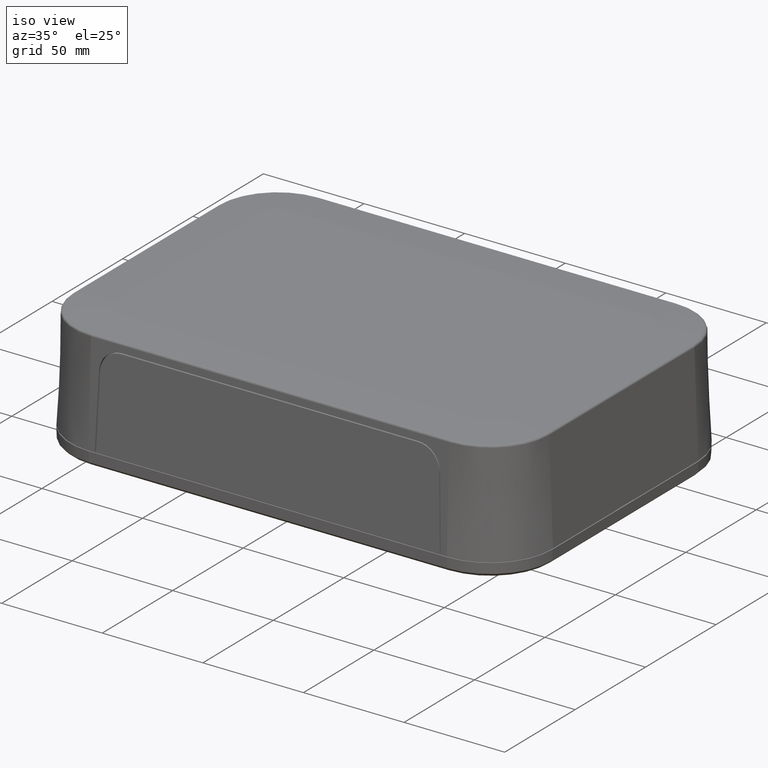
[diagram: clean part render]
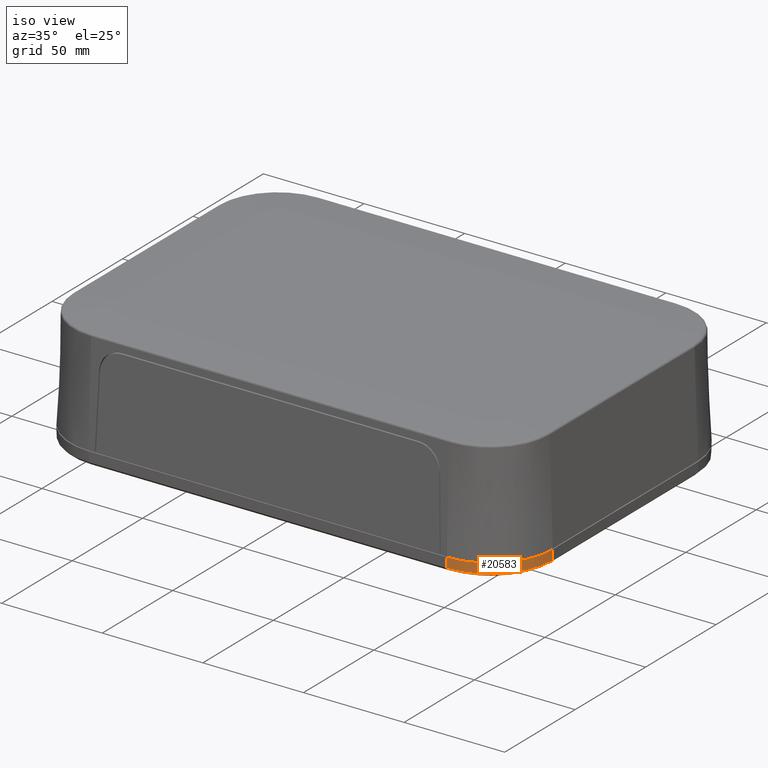
[diagram: same view with one face highlighted and labeled with its STEP entity id]
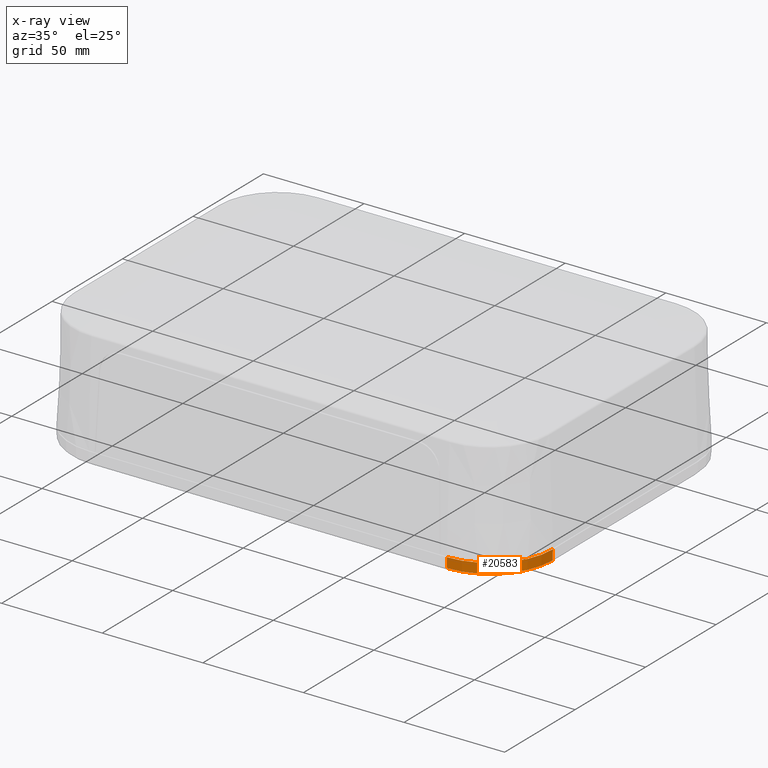
[diagram: x-ray of the same camera — body ghosted, the highlighted face saturated]
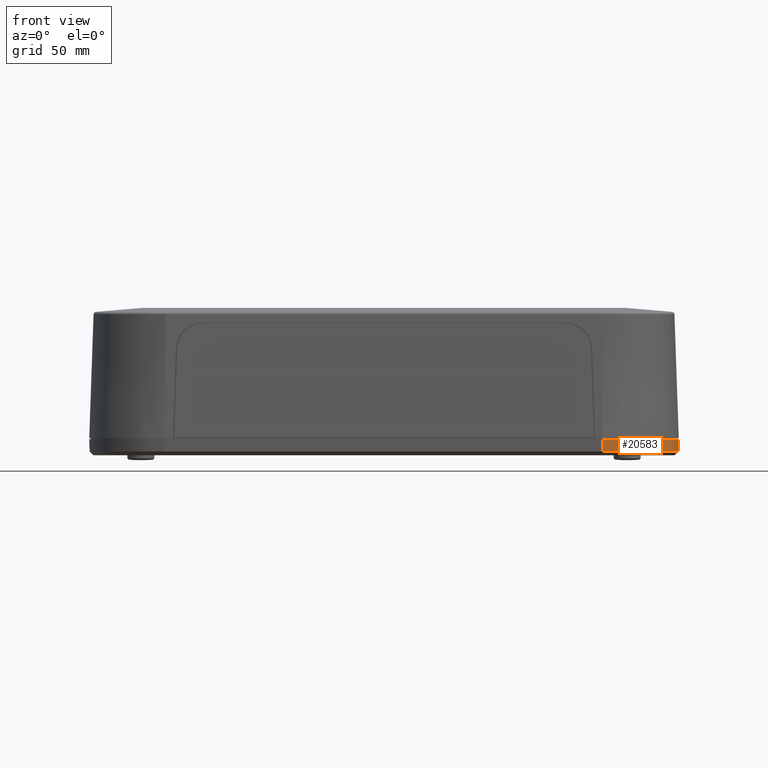
[diagram: same view with one face highlighted and labeled with its STEP entity id]
A machine part, iso view. The second image highlights one B-rep face of the part: STEP entity #20583.
The next image is the same camera in x-ray: the body ghosted, the highlighted face saturated — about 0% of this face is hidden behind the body in this view.
A second angle (front view) of the same face is appended — the face is thin or edge-on in the first view.
In plain terms, the highlighted conical surface has half-angle 2 deg.
Its self-contained STEP definition (entity closure, byte-faithful):
#1701=CARTESIAN_POINT('',(89.0,-82.5,0.0));
#1702=VERTEX_POINT('',#1701);
#1709=CARTESIAN_POINT('',(120.0,-51.499999999999986,0.0));
#1710=VERTEX_POINT('',#1709);
#1711=CARTESIAN_POINT('',(89.0,-51.499999999999986,0.0));
#1712=DIRECTION('',(0.0,0.0,-1.0));
#1713=DIRECTION('',(0.0,1.0,0.0));
#1714=AXIS2_PLACEMENT_3D('',#1711,#1712,#1713);
#1715=CIRCLE('',#1714,30.999999999999996);
#1716=EDGE_CURVE('',#1710,#1702,#1715,.T.);
#20484=CARTESIAN_POINT('',(89.0,-82.32536424335737,-5.000913759471358));
#20485=VERTEX_POINT('',#20484);
#20508=CARTESIAN_POINT('',(119.8253642433574,-51.499999999999986,-5.000913759471354));
#20509=VERTEX_POINT('',#20508);
#20516=CARTESIAN_POINT('',(89.0,-51.499999999999986,-5.000913759471354));
#20517=DIRECTION('',(0.0,0.0,-1.0));
#20518=DIRECTION('',(0.0,-1.0,0.0));
#20519=AXIS2_PLACEMENT_3D('',#20516,#20517,#20518);
#20520=CIRCLE('',#20519,30.825364243357392);
#20521=EDGE_CURVE('',#20509,#20485,#20520,.T.);
#20551=CARTESIAN_POINT('',(89.0,-82.5,0.0));
#20552=DIRECTION('',(0.0,0.034899496702502,-0.999390827019096));
#20553=VECTOR('',#20552,5.003962037942342);
#20554=LINE('',#20551,#20553);
#20555=EDGE_CURVE('',#1702,#20485,#20554,.T.);
#20567=CARTESIAN_POINT('',(89.0,-51.499999999999986,0.0));
#20568=DIRECTION('',(0.0,0.0,1.0));
#20569=DIRECTION('',(0.0,1.0,0.0));
#20570=AXIS2_PLACEMENT_3D('',#20567,#20568,#20569);
#20571=CONICAL_SURFACE('',#20570,30.999999999999996,2.0);
#20572=ORIENTED_EDGE('',*,*,#20521,.F.);
#20573=CARTESIAN_POINT('',(120.0,-51.499999999999986,0.0));
#20574=DIRECTION('',(-0.0348994967025,0.0,-0.999390827019096));
#20575=VECTOR('',#20574,5.003962037942338);
#20576=LINE('',#20573,#20575);
#20577=EDGE_CURVE('',#1710,#20509,#20576,.T.);
#20578=ORIENTED_EDGE('',*,*,#20577,.F.);
#20579=ORIENTED_EDGE('',*,*,#1716,.T.);
#20580=ORIENTED_EDGE('',*,*,#20555,.T.);
#20581=EDGE_LOOP('',(#20572,#20578,#20579,#20580));
#20582=FACE_OUTER_BOUND('',#20581,.T.);
#20583=ADVANCED_FACE('',(#20582),#20571,.T.);